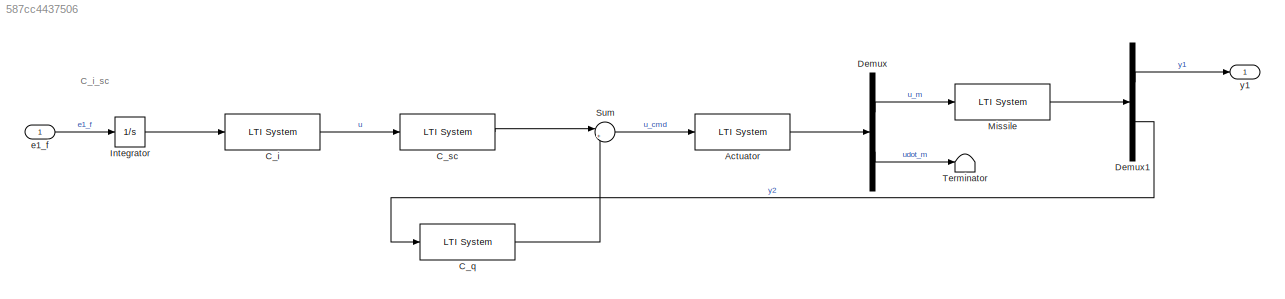
MODEL slx_587cc4437506
KIND model
CONFIG AbsTol = auto
CONFIG EnableMultiTasking = off
CONFIG FixedStep = auto
CONFIG MaxStep = auto
CONFIG MinStep = auto
CONFIG RelTol = 1e-6
CONFIG SampleTimeConstraint = Unconstrained
CONFIG SolverName = VariableStepAuto
CONFIG StartTime = 0.0
CONFIG StopTime = 10.0
BLOCK [Reference] Actuator  REF=cstblocks/LTI System
  SourceBlock = cstblocks/LTI System
  SourceType = LTI Block
BLOCK [Reference] C_i  REF=cstblocks/LTI System
  SourceBlock = cstblocks/LTI System
  SourceType = LTI Block
BLOCK [Reference] C_q  REF=cstblocks/LTI System
  SourceBlock = cstblocks/LTI System
  SourceType = LTI Block
BLOCK [Reference] C_sc  REF=cstblocks/LTI System
  SourceBlock = cstblocks/LTI System
  SourceType = LTI Block
BLOCK [Demux] Demux
  Outputs = 2
BLOCK [Demux] Demux1
  Outputs = 2
BLOCK [Integrator] Integrator
BLOCK [Reference] Missile  REF=cstblocks/LTI System
  SourceBlock = cstblocks/LTI System
  SourceType = LTI Block
BLOCK [Sum] Sum
  Inputs = |+-
BLOCK [Terminator] Terminator
BLOCK [Inport] e1_f
BLOCK [Outport] y1
ANNOTATION (root): C_i_sc
LINE Actuator:1 -> Demux:1
LINE C_i:1 -> C_sc:1
LINE C_q:1 -> Sum:2
LINE C_sc:1 -> Sum:1
LINE Demux1:1 -> y1:1
LINE Demux1:2 -> C_q:1
LINE Demux:1 -> Missile:1
LINE Demux:2 -> Terminator:1
LINE Integrator:1 -> C_i:1
LINE Missile:1 -> Demux1:1
LINE Sum:1 -> Actuator:1
LINE e1_f:1 -> Integrator:1
